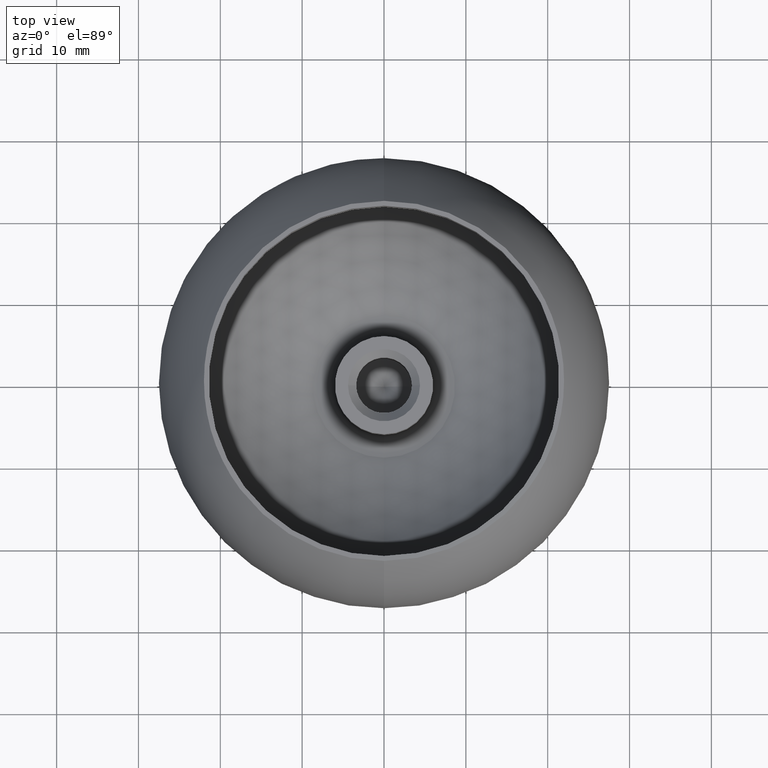
[diagram: clean part render]
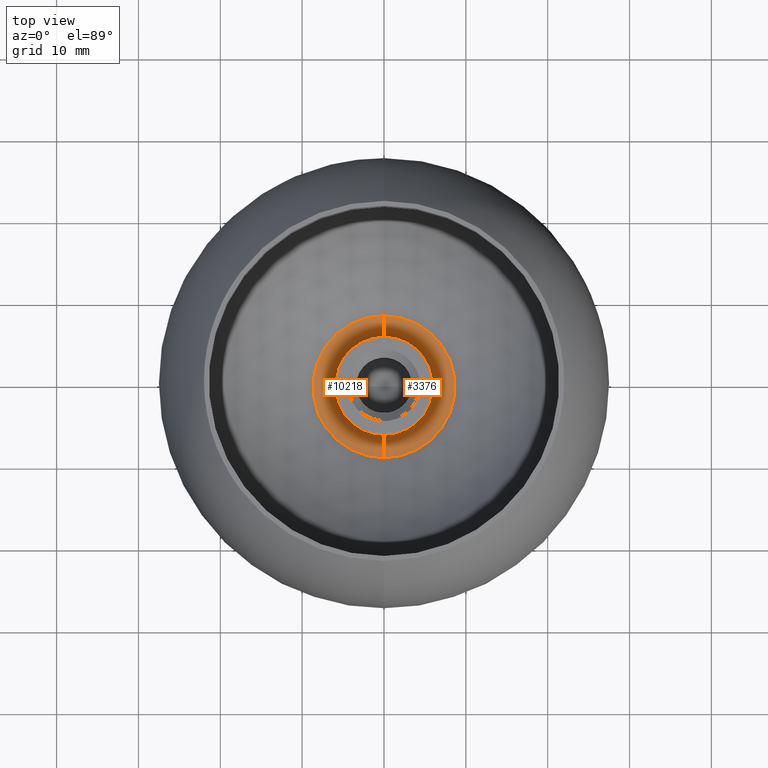
[diagram: same view with one multi-face feature highlighted, each face labeled with its STEP entity id]
A machine part, top view. The highlighted faces form ONE feature: a constant-radius fillet chain: 2 tangent blend faces with common blend radius 2 mm. The faces share edges in the B-rep.
Their STEP definitions:
[1] entity #3376 (Torus):
#14 = AXIS2_PLACEMENT_3D ( 'NONE', #4957, #11521, #5954 ) ;
#910 = DIRECTION ( 'NONE',  ( -1.000000000000000000, 0.0000000000000000000, 0.0000000000000000000 ) ) ;
#1285 = ORIENTED_EDGE ( 'NONE', *, *, #8459, .F. ) ;
#1324 = CARTESIAN_POINT ( 'NONE',  ( 9.797174393178827600E-016, 7.999999999999998200, -22.09637979398435400 ) ) ;
#1342 = FACE_OUTER_BOUND ( 'NONE', #2076, .T. ) ;
#1496 = CARTESIAN_POINT ( 'NONE',  ( 7.347880794884123700E-016, -6.000000000000007100, -22.09637979398435400 ) ) ;
#1762 = CARTESIAN_POINT ( 'NONE',  ( 0.0000000000000000000, -3.909319765937533000E-015, -22.09637979398435400 ) ) ;
#1800 = DIRECTION ( 'NONE',  ( 0.0000000000000000000, 0.0000000000000000000, 1.000000000000000000 ) ) ;
#1932 = CIRCLE ( 'NONE', #14, 6.000000000000001800 ) ;
#2076 = EDGE_LOOP ( 'NONE', ( #1285, #6659, #2716, #4226 ) ) ;
#2379 = EDGE_CURVE ( 'NONE', #8006, #6902, #11422, .T. ) ;
#2424 = AXIS2_PLACEMENT_3D ( 'NONE', #1324, #4031, #7795 ) ;
#2716 = ORIENTED_EDGE ( 'NONE', *, *, #4458, .T. ) ;
#2786 = DIRECTION ( 'NONE',  ( 0.0000000000000000000, 2.114042506676481100E-016, 1.000000000000000000 ) ) ;
#3371 = DIRECTION ( 'NONE',  ( 0.0000000000000000000, -1.000000000000000000, 2.114042506676481300E-016 ) ) ;
#3376 = ADVANCED_FACE ( 'NONE', ( #1342 ), #3686, .F. ) ;
#3402 = CARTESIAN_POINT ( 'NONE',  ( 2.053120375680183900E-015, -8.680851063829795300, -23.97692275517451000 ) ) ;
#3686 = TOROIDAL_SURFACE ( 'NONE', #12092, 8.000000000000001800, 2.000000000000000000 ) ;
#4031 = DIRECTION ( 'NONE',  ( 1.000000000000000000, -1.224646799147353200E-016, 2.588955389062799600E-032 ) ) ;
#4226 = ORIENTED_EDGE ( 'NONE', *, *, #2379, .F. ) ;
#4458 = EDGE_CURVE ( 'NONE', #9585, #6902, #11096, .T. ) ;
#4498 = CARTESIAN_POINT ( 'NONE',  ( 0.0000000000000000000, -8.000000000000005300, -22.09637979398435400 ) ) ;
#4682 = AXIS2_PLACEMENT_3D ( 'NONE', #4498, #910, #1800 ) ;
#4957 = CARTESIAN_POINT ( 'NONE',  ( 0.0000000000000000000, -3.909319765937533000E-015, -22.09637979398435400 ) ) ;
#5954 = DIRECTION ( 'NONE',  ( 0.0000000000000000000, -1.000000000000000000, 0.0000000000000000000 ) ) ;
#6327 = AXIS2_PLACEMENT_3D ( 'NONE', #8251, #9124, #10116 ) ;
#6555 = CIRCLE ( 'NONE', #2424, 2.000000000000000000 ) ;
#6659 = ORIENTED_EDGE ( 'NONE', *, *, #12060, .F. ) ;
#6830 = CARTESIAN_POINT ( 'NONE',  ( 0.0000000000000000000, 8.680851063829784700, -23.97692275517451700 ) ) ;
#6902 = VERTEX_POINT ( 'NONE', #3402 ) ;
#7795 = DIRECTION ( 'NONE',  ( 1.224646799147353500E-016, 1.000000000000000000, 0.0000000000000000000 ) ) ;
#8006 = VERTEX_POINT ( 'NONE', #6830 ) ;
#8251 = CARTESIAN_POINT ( 'NONE',  ( 0.0000000000000000000, -5.068823388373748600E-015, -23.97692275517451300 ) ) ;
#8459 = EDGE_CURVE ( 'NONE', #9868, #8006, #6555, .T. ) ;
#9124 = DIRECTION ( 'NONE',  ( -0.0000000000000000000, -2.114042506676481100E-016, -1.000000000000000000 ) ) ;
#9585 = VERTEX_POINT ( 'NONE', #1496 ) ;
#9868 = VERTEX_POINT ( 'NONE', #10502 ) ;
#10116 = DIRECTION ( 'NONE',  ( 0.0000000000000000000, -1.000000000000000000, 3.996666831907348400E-016 ) ) ;
#10502 = CARTESIAN_POINT ( 'NONE',  ( 0.0000000000000000000, 5.999999999999997300, -22.09637979398435400 ) ) ;
#11096 = CIRCLE ( 'NONE', #4682, 1.999999999999998200 ) ;
#11422 = CIRCLE ( 'NONE', #6327, 8.680851063829790000 ) ;
#11521 = DIRECTION ( 'NONE',  ( 0.0000000000000000000, 2.114042506676481100E-016, 1.000000000000000000 ) ) ;
#12060 = EDGE_CURVE ( 'NONE', #9585, #9868, #1932, .T. ) ;
#12092 = AXIS2_PLACEMENT_3D ( 'NONE', #1762, #2786, #3371 ) ;
[2] entity #10218 (Torus):
#511 = FACE_OUTER_BOUND ( 'NONE', #8981, .T. ) ;
#910 = DIRECTION ( 'NONE',  ( -1.000000000000000000, 0.0000000000000000000, 0.0000000000000000000 ) ) ;
#1324 = CARTESIAN_POINT ( 'NONE',  ( 9.797174393178827600E-016, 7.999999999999998200, -22.09637979398435400 ) ) ;
#1496 = CARTESIAN_POINT ( 'NONE',  ( 7.347880794884123700E-016, -6.000000000000007100, -22.09637979398435400 ) ) ;
#1733 = EDGE_CURVE ( 'NONE', #9868, #9585, #10264, .T. ) ;
#1800 = DIRECTION ( 'NONE',  ( 0.0000000000000000000, 0.0000000000000000000, 1.000000000000000000 ) ) ;
#1892 = DIRECTION ( 'NONE',  ( 0.0000000000000000000, -1.000000000000000000, 0.0000000000000000000 ) ) ;
#2424 = AXIS2_PLACEMENT_3D ( 'NONE', #1324, #4031, #7795 ) ;
#2562 = CARTESIAN_POINT ( 'NONE',  ( 0.0000000000000000000, -3.909319765937533000E-015, -22.09637979398435400 ) ) ;
#3168 = AXIS2_PLACEMENT_3D ( 'NONE', #2562, #11001, #8301 ) ;
#3321 = ORIENTED_EDGE ( 'NONE', *, *, #10095, .F. ) ;
#3402 = CARTESIAN_POINT ( 'NONE',  ( 2.053120375680183900E-015, -8.680851063829795300, -23.97692275517451000 ) ) ;
#4031 = DIRECTION ( 'NONE',  ( 1.000000000000000000, -1.224646799147353200E-016, 2.588955389062799600E-032 ) ) ;
#4458 = EDGE_CURVE ( 'NONE', #9585, #6902, #11096, .T. ) ;
#4498 = CARTESIAN_POINT ( 'NONE',  ( 0.0000000000000000000, -8.000000000000005300, -22.09637979398435400 ) ) ;
#4682 = AXIS2_PLACEMENT_3D ( 'NONE', #4498, #910, #1800 ) ;
#4972 = CARTESIAN_POINT ( 'NONE',  ( 0.0000000000000000000, -5.068823388373748600E-015, -23.97692275517451300 ) ) ;
#5921 = DIRECTION ( 'NONE',  ( 0.0000000000000000000, -1.000000000000000000, 3.996666831907348400E-016 ) ) ;
#6555 = CIRCLE ( 'NONE', #2424, 2.000000000000000000 ) ;
#6830 = CARTESIAN_POINT ( 'NONE',  ( 0.0000000000000000000, 8.680851063829784700, -23.97692275517451700 ) ) ;
#6902 = VERTEX_POINT ( 'NONE', #3402 ) ;
#7512 = CARTESIAN_POINT ( 'NONE',  ( 0.0000000000000000000, -3.909319765937533000E-015, -22.09637979398435400 ) ) ;
#7795 = DIRECTION ( 'NONE',  ( 1.224646799147353500E-016, 1.000000000000000000, 0.0000000000000000000 ) ) ;
#8006 = VERTEX_POINT ( 'NONE', #6830 ) ;
#8023 = CIRCLE ( 'NONE', #10992, 8.680851063829790000 ) ;
#8141 = ORIENTED_EDGE ( 'NONE', *, *, #8459, .T. ) ;
#8301 = DIRECTION ( 'NONE',  ( 0.0000000000000000000, -1.000000000000000000, 2.114042506676481300E-016 ) ) ;
#8457 = DIRECTION ( 'NONE',  ( 0.0000000000000000000, 2.114042506676481100E-016, 1.000000000000000000 ) ) ;
#8459 = EDGE_CURVE ( 'NONE', #9868, #8006, #6555, .T. ) ;
#8981 = EDGE_LOOP ( 'NONE', ( #9542, #8141, #3321, #11903 ) ) ;
#9542 = ORIENTED_EDGE ( 'NONE', *, *, #1733, .F. ) ;
#9585 = VERTEX_POINT ( 'NONE', #1496 ) ;
#9868 = VERTEX_POINT ( 'NONE', #10502 ) ;
#9917 = TOROIDAL_SURFACE ( 'NONE', #3168, 8.000000000000001800, 2.000000000000000000 ) ;
#10095 = EDGE_CURVE ( 'NONE', #6902, #8006, #8023, .T. ) ;
#10218 = ADVANCED_FACE ( 'NONE', ( #511 ), #9917, .F. ) ;
#10264 = CIRCLE ( 'NONE', #11533, 6.000000000000001800 ) ;
#10502 = CARTESIAN_POINT ( 'NONE',  ( 0.0000000000000000000, 5.999999999999997300, -22.09637979398435400 ) ) ;
#10555 = DIRECTION ( 'NONE',  ( -0.0000000000000000000, -2.114042506676481100E-016, -1.000000000000000000 ) ) ;
#10992 = AXIS2_PLACEMENT_3D ( 'NONE', #4972, #10555, #5921 ) ;
#11001 = DIRECTION ( 'NONE',  ( 0.0000000000000000000, 2.114042506676481100E-016, 1.000000000000000000 ) ) ;
#11096 = CIRCLE ( 'NONE', #4682, 1.999999999999998200 ) ;
#11533 = AXIS2_PLACEMENT_3D ( 'NONE', #7512, #8457, #1892 ) ;
#11903 = ORIENTED_EDGE ( 'NONE', *, *, #4458, .F. ) ;